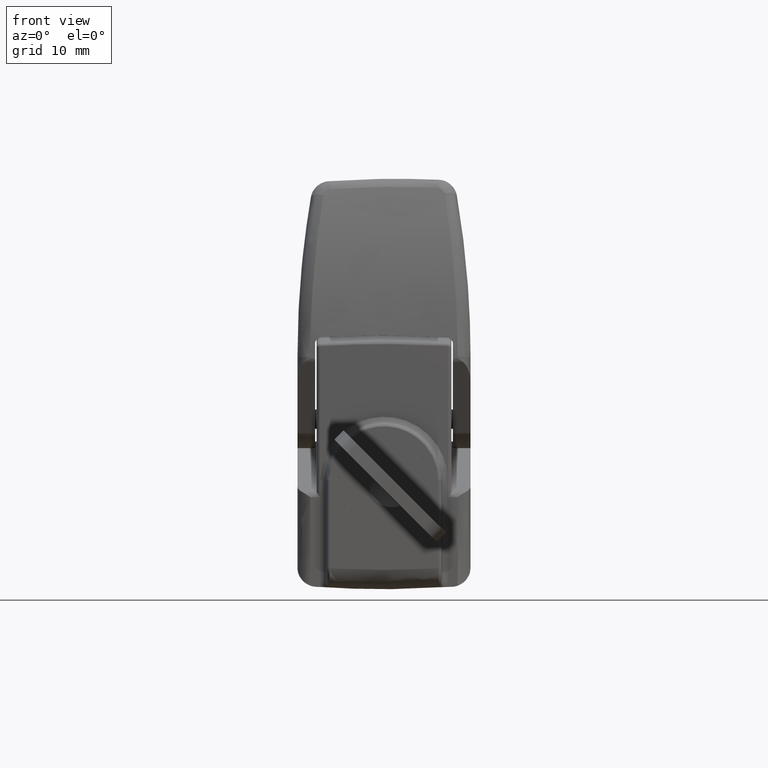
[diagram: clean part render]
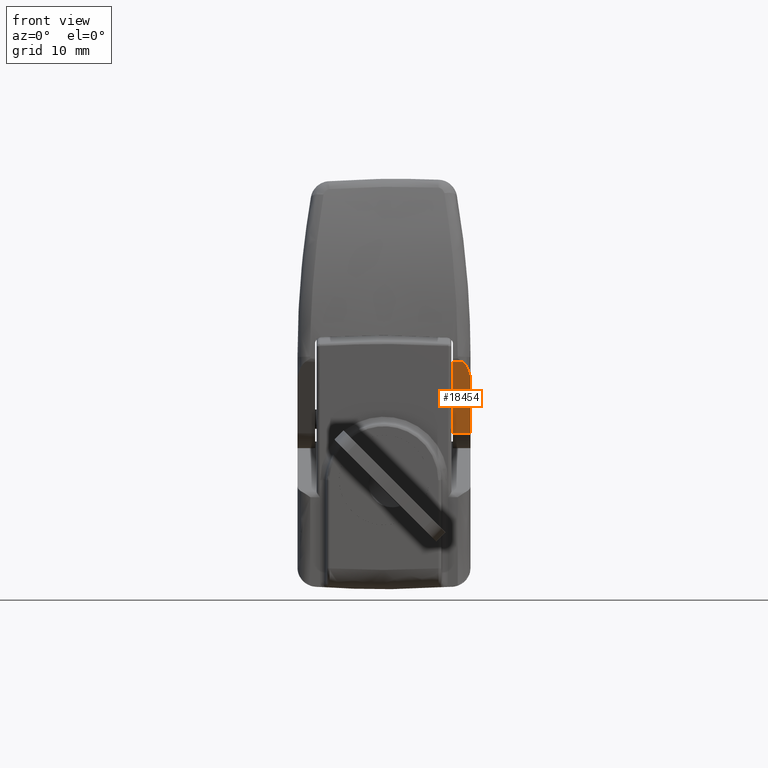
[diagram: same view with one face highlighted and labeled with its STEP entity id]
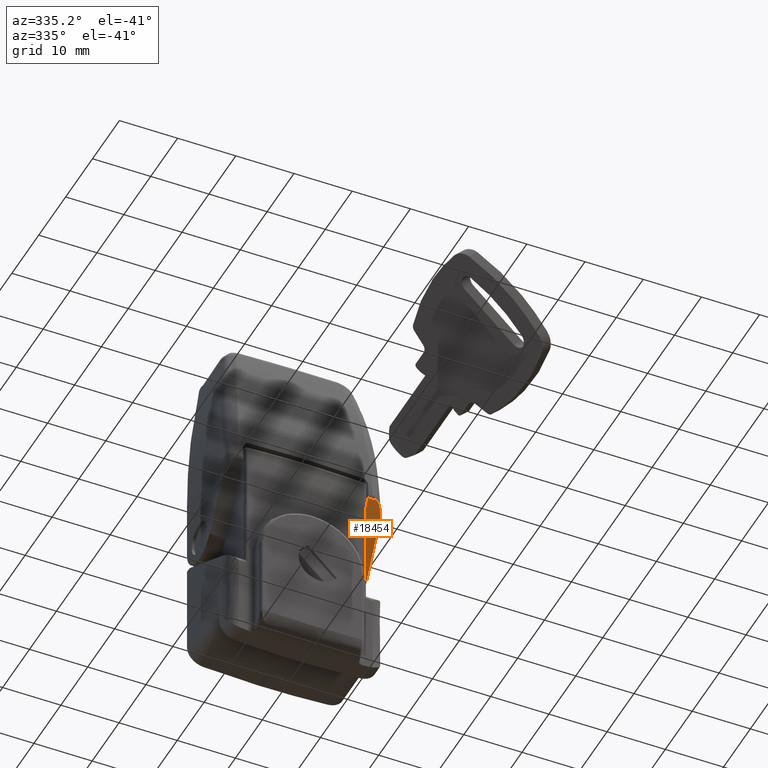
[diagram: same view with one face highlighted and labeled with its STEP entity id]
A machine part, front view. The second image highlights one B-rep face of the part: STEP entity #18454.
A second angle (auxiliary view) of the same face is appended — the face is thin or edge-on in the first view.
In plain terms, the highlighted face is a freeform B-spline surface patch.
Its self-contained STEP definition (entity closure, byte-faithful):
#18074=CARTESIAN_POINT('',(-14.284334928335980,-13.500000000000000,7.867497698240779));
#18075=VERTEX_POINT('',#18074);
#18076=CARTESIAN_POINT('',(-16.063182397135201,-12.275812688631801,10.948551955807661));
#18077=VERTEX_POINT('',#18076);
#18078=CARTESIAN_POINT('',(-14.284334928335980,-13.500000000000000,7.867497698240779));
#18079=CARTESIAN_POINT('',(-14.446382079686980,-13.500000000000000,8.148171603313479));
#18080=CARTESIAN_POINT('',(-14.607060066789369,-13.480493501772450,8.426474046295457));
#18081=CARTESIAN_POINT('',(-14.845826963719659,-13.419176786681920,8.840030451359064));
#18082=CARTESIAN_POINT('',(-14.925037305369360,-13.393343621415900,8.977226790372827));
#18083=CARTESIAN_POINT('',(-15.082607557667581,-13.329561190982490,9.250146478667979));
#18084=CARTESIAN_POINT('',(-15.160968751356950,-13.291630205312449,9.385872050241380));
#18085=CARTESIAN_POINT('',(-15.277752255908529,-13.223930418008930,9.588147017726415));
#18086=CARTESIAN_POINT('',(-15.316581352137449,-13.199524508609100,9.655400986575346));
#18087=CARTESIAN_POINT('',(-15.393274387838510,-13.147151361434601,9.788237223699136));
#18088=CARTESIAN_POINT('',(-15.431218578698260,-13.119142469970960,9.853958491457576));
#18089=CARTESIAN_POINT('',(-15.543722834271859,-13.029099257091710,10.048821582143709));
#18090=CARTESIAN_POINT('',(-15.616978096630699,-12.961154905498690,10.175703421052720));
#18091=CARTESIAN_POINT('',(-15.723444001862370,-12.843761318361221,10.360107781939931));
#18092=CARTESIAN_POINT('',(-15.758493000003860,-12.801843474962681,10.420814428710610));
#18093=CARTESIAN_POINT('',(-15.826414789159760,-12.712855457560060,10.538458420863339));
#18094=CARTESIAN_POINT('',(-15.859284610017310,-12.665827741109959,10.595390621782730));
#18095=CARTESIAN_POINT('',(-15.922498417041391,-12.565906777027759,10.704880149516100));
#18096=CARTESIAN_POINT('',(-15.952845670564860,-12.513021116900960,10.757443135558450));
#18097=CARTESIAN_POINT('',(-16.010497971649318,-12.400185140358349,10.857299852241820));
#18098=CARTESIAN_POINT('',(-16.037810291123652,-12.340251710888809,10.904606178206491));
#18099=CARTESIAN_POINT('',(-16.063182397135201,-12.275812688631801,10.948551955807661));
#18100=B_SPLINE_CURVE_WITH_KNOTS('',3,(#18078,#18079,#18080,#18081,#18082,#18083,#18084,#18085,#18086,#18087,#18088,#18089,#18090,#18091,#18092,#18093,#18094,#18095,#18096,#18097,#18098,#18099),.UNSPECIFIED.,.F.,.U.,(4,2,2,2,2,2,2,2,2,2,4),(0.0,0.249999999999999,0.374999999999998,0.499999999999998,0.562499999999998,0.624999999999997,0.749999999999998,0.812499999999999,0.874999999999999,0.937500000000000,1.0),.UNSPECIFIED.);
#18101=EDGE_CURVE('',#18075,#18077,#18100,.T.);
#18244=CARTESIAN_POINT('',(-16.063182397135201,-10.750000000000000,10.948551955807741));
#18245=VERTEX_POINT('',#18244);
#18246=CARTESIAN_POINT('',(-16.063182397135201,-12.275812688631801,10.948551955807661));
#18247=CARTESIAN_POINT('',(-16.063182397135201,-10.750000000000000,10.948551955807741));
#18248=QUASI_UNIFORM_CURVE('',1,(#18246,#18247),.UNSPECIFIED.,.F.,.U.);
#18249=EDGE_CURVE('',#18077,#18245,#18248,.T.);
#18383=CARTESIAN_POINT('',(-9.638911999999889,-10.750000000000000,-0.178610999999876));
#18384=VERTEX_POINT('',#18383);
#18409=CARTESIAN_POINT('',(-9.638911999999889,-13.500000000000000,-0.178610999999876));
#18410=VERTEX_POINT('',#18409);
#18426=CARTESIAN_POINT('',(-9.638911999999889,-10.750000000000000,-0.178610999999876));
#18427=CARTESIAN_POINT('',(-9.638911999999889,-13.500000000000000,-0.178610999999876));
#18428=QUASI_UNIFORM_CURVE('',1,(#18426,#18427),.UNSPECIFIED.,.F.,.U.);
#18429=EDGE_CURVE('',#18384,#18410,#18428,.T.);
#18434=CARTESIAN_POINT('',(-16.384074932246470,-13.637362494669970,11.504354141699091));
#18435=CARTESIAN_POINT('',(-9.318019522326095,-13.637362494669970,-0.734413086406654));
#18436=CARTESIAN_POINT('',(-16.384074932246470,-10.612637431569290,11.504354141699091));
#18437=CARTESIAN_POINT('',(-9.318019522326095,-10.612637431569290,-0.734413086406654));
#18438=B_SPLINE_SURFACE_WITH_KNOTS('',1,1,((#18434,#18436),(#18435,#18437)),.UNSPECIFIED.,.F.,.F.,.U.,(2,2),(2,2),(0.0,14.132111035504220),(0.0,3.024725063100680),.UNSPECIFIED.);
#18439=CARTESIAN_POINT('',(-9.638911999999889,-13.500000000000000,-0.178610999999876));
#18440=CARTESIAN_POINT('',(-14.284334928335980,-13.500000000000000,7.867497698240779));
#18441=QUASI_UNIFORM_CURVE('',1,(#18439,#18440),.UNSPECIFIED.,.F.,.U.);
#18442=EDGE_CURVE('',#18410,#18075,#18441,.T.);
#18443=ORIENTED_EDGE('',*,*,#18442,.T.);
#18444=ORIENTED_EDGE('',*,*,#18101,.T.);
#18445=ORIENTED_EDGE('',*,*,#18249,.T.);
#18446=CARTESIAN_POINT('',(-9.638911999999889,-10.750000000000000,-0.178610999999876));
#18447=CARTESIAN_POINT('',(-16.063182397135201,-10.750000000000000,10.948551955807741));
#18448=QUASI_UNIFORM_CURVE('',1,(#18446,#18447),.UNSPECIFIED.,.F.,.U.);
#18449=EDGE_CURVE('',#18384,#18245,#18448,.T.);
#18450=ORIENTED_EDGE('',*,*,#18449,.F.);
#18451=ORIENTED_EDGE('',*,*,#18429,.T.);
#18452=EDGE_LOOP('',(#18443,#18444,#18445,#18450,#18451));
#18453=FACE_OUTER_BOUND('',#18452,.T.);
#18454=ADVANCED_FACE('',(#18453),#18438,.F.);